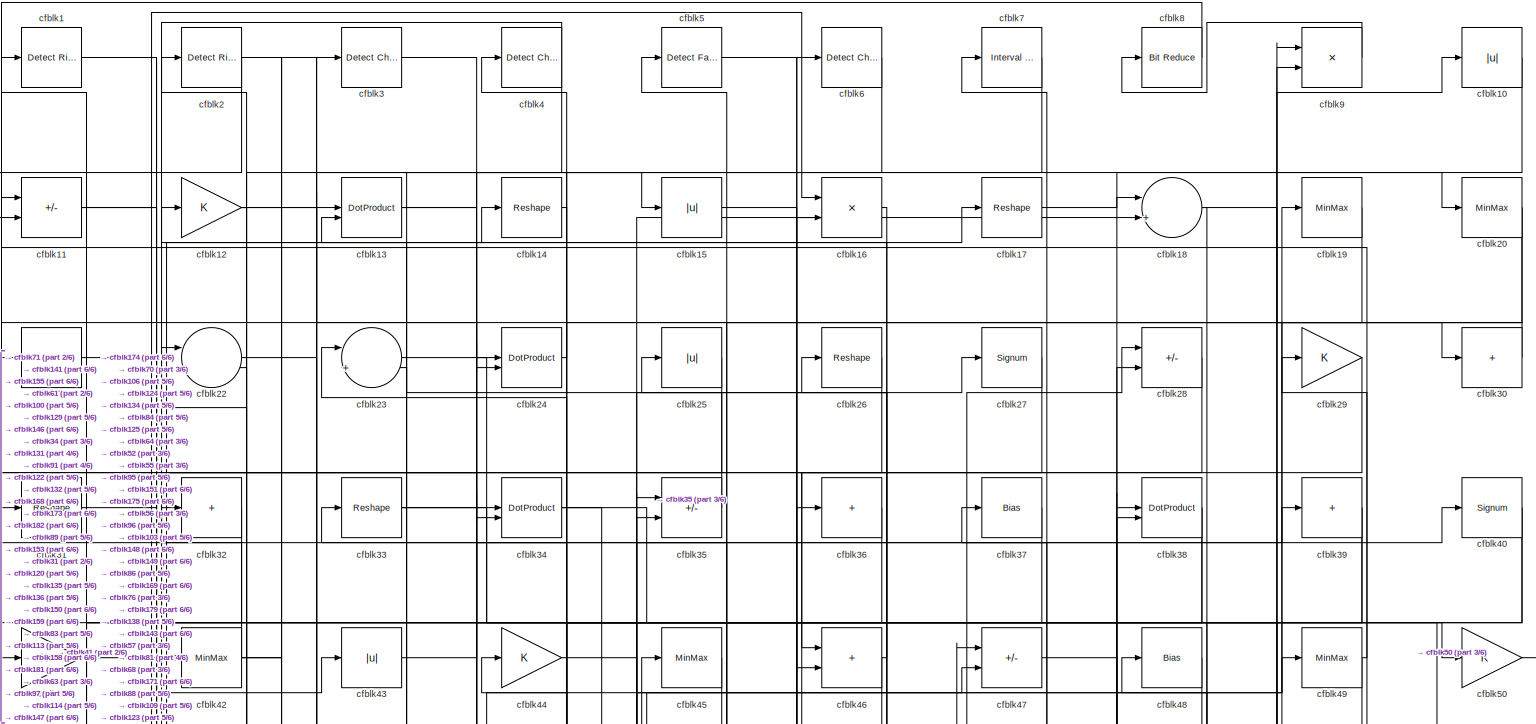
[diagram: root canvas - part 1/6, full width, top band]
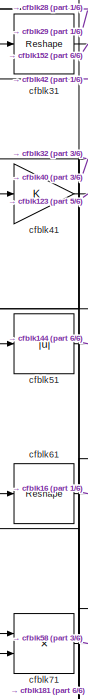
[diagram: root canvas - part 2/6, top left region]
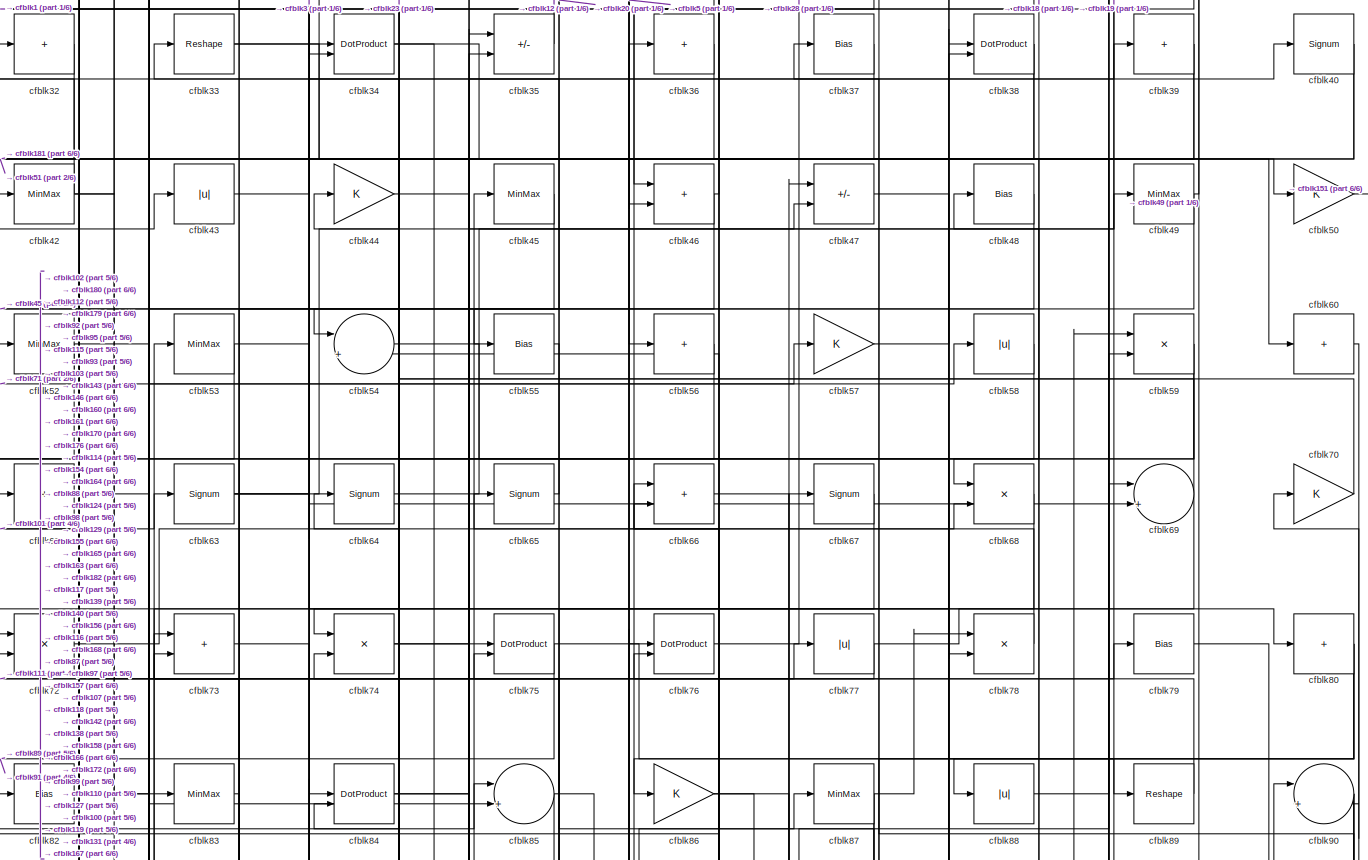
[diagram: root canvas - part 3/6, full width, top band]
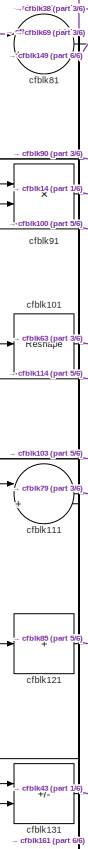
[diagram: root canvas - part 4/6, middle left region]
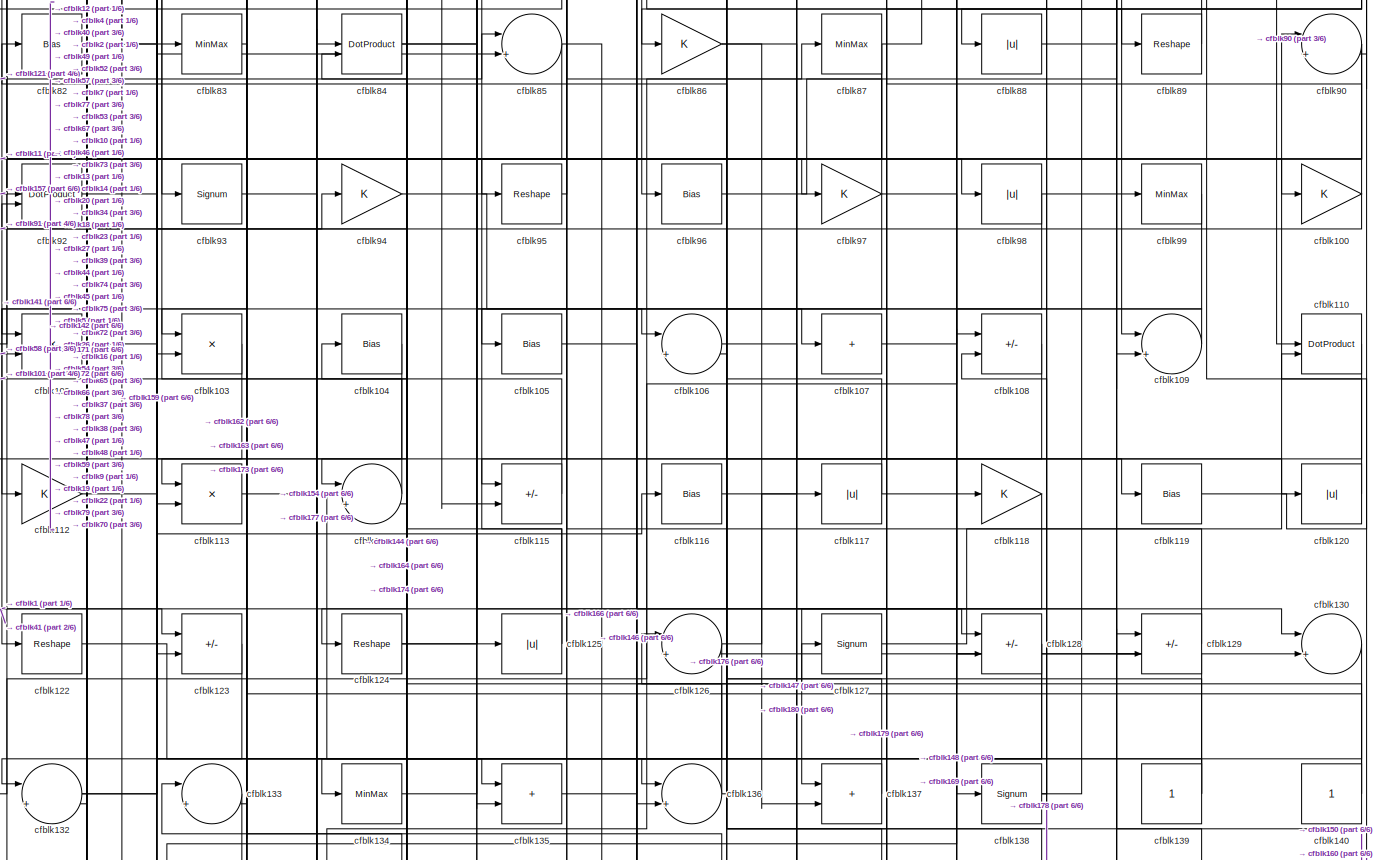
[diagram: root canvas - part 5/6, full width, middle band]
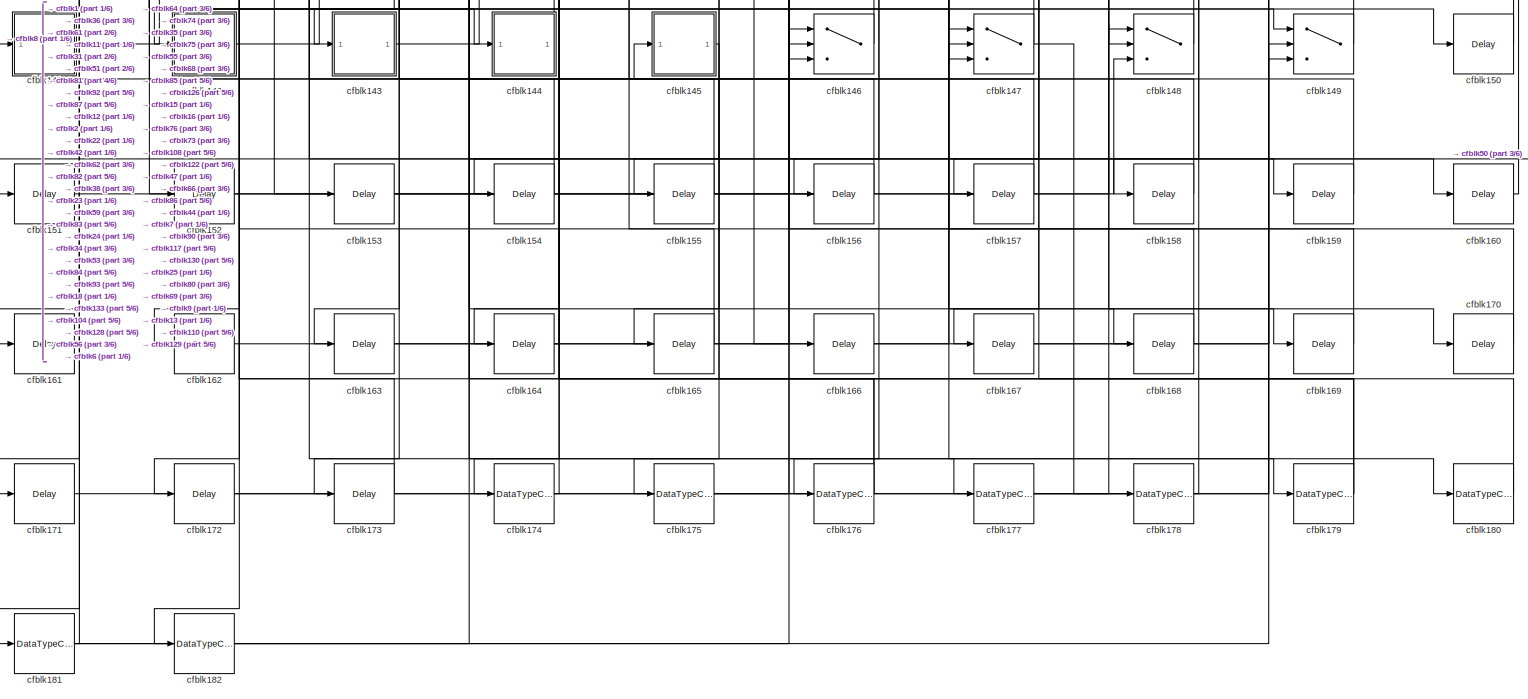
[diagram: root canvas - part 6/6, full width, bottom band]
MODEL slx_d55942059421
KIND model
CONFIG AbsTol = auto
CONFIG EnableMultiTasking = off
CONFIG FixedStep = auto
CONFIG MaxStep = auto
CONFIG MinStep = auto
CONFIG RelTol = 1e-3
CONFIG SampleTimeConstraint = Unconstrained
CONFIG SolverName = VariableStepAuto
CONFIG StartTime = 0.0
CONFIG StopTime = 10.0
BLOCK [Reference] cfblk1  REF=hdlsllib/Logic and Bit
Operations/Detect Rise
Positive
  SourceBlock = hdlsllib/Logic and Bit\nOperations/Detect Rise\nPositive
  SourceType = Detect Rise Positive
BLOCK [Abs] cfblk10
  SaturateOnIntegerOverflow = off
BLOCK [Gain] cfblk100
BLOCK [Reshape] cfblk101
BLOCK [Product] cfblk102
  Inputs = */
  RndMeth = Zero
  SaturateOnIntegerOverflow = on
BLOCK [Product] cfblk103
  Inputs = */
  RndMeth = Zero
  SaturateOnIntegerOverflow = on
BLOCK [Bias] cfblk104
  Bias = 0.0
  SaturateOnIntegerOverflow = off
BLOCK [Bias] cfblk105
  Bias = 0.0
  SaturateOnIntegerOverflow = off
BLOCK [Sum] cfblk106
  Inputs = |++
BLOCK [Sum] cfblk107
  IconShape = rectangular
  Inputs = +
BLOCK [Sum] cfblk108
  IconShape = rectangular
  Inputs = +-
BLOCK [Sum] cfblk109
  Inputs = |++
BLOCK [Sum] cfblk11
  IconShape = rectangular
  Inputs = +-
BLOCK [DotProduct] cfblk110
  OutDataTypeStr = Inherit: Inherit via internal rule
BLOCK [Sum] cfblk111
  Inputs = |++
BLOCK [Gain] cfblk112
BLOCK [Product] cfblk113
  Inputs = */
  RndMeth = Zero
  SaturateOnIntegerOverflow = on
BLOCK [Sum] cfblk114
  Inputs = |++
BLOCK [Sum] cfblk115
  IconShape = rectangular
  Inputs = +-
BLOCK [Bias] cfblk116
  Bias = 0.0
  SaturateOnIntegerOverflow = off
BLOCK [Abs] cfblk117
  SaturateOnIntegerOverflow = off
BLOCK [Gain] cfblk118
BLOCK [Bias] cfblk119
  Bias = 0.0
  SaturateOnIntegerOverflow = off
BLOCK [Gain] cfblk12
BLOCK [Abs] cfblk120
  SaturateOnIntegerOverflow = off
BLOCK [Sum] cfblk121
  IconShape = rectangular
  Inputs = +
BLOCK [Reshape] cfblk122
BLOCK [Sum] cfblk123
  IconShape = rectangular
  Inputs = +-
BLOCK [Reshape] cfblk124
BLOCK [Abs] cfblk125
  SaturateOnIntegerOverflow = off
BLOCK [Sum] cfblk126
  Inputs = |++
BLOCK [Signum] cfblk127
BLOCK [Sum] cfblk128
  IconShape = rectangular
  Inputs = +-
BLOCK [Sum] cfblk129
  IconShape = rectangular
  Inputs = +-
BLOCK [DotProduct] cfblk13
  OutDataTypeStr = Inherit: Inherit via internal rule
BLOCK [Sum] cfblk130
  Inputs = |++
BLOCK [Sum] cfblk131
  IconShape = rectangular
  Inputs = +-
BLOCK [Sum] cfblk132
  Inputs = |++
BLOCK [Sum] cfblk133
  Inputs = |++
BLOCK [MinMax] cfblk134
BLOCK [Sum] cfblk135
  IconShape = rectangular
BLOCK [Sum] cfblk136
  Inputs = |++
BLOCK [Sum] cfblk137
  IconShape = rectangular
BLOCK [Signum] cfblk138
BLOCK [Constant] cfblk139
  SampleTime = -1
BLOCK [Reshape] cfblk14
BLOCK [Constant] cfblk140
  SampleTime = -1
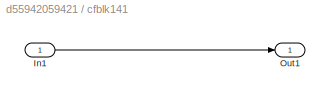
BLOCK [SubSystem] cfblk141
  LibrarySourceBlock = hdlsllib/Ports &\nSubsystems/Subsystem
BLOCK [Inport] cfblk141/In1
BLOCK [Outport] cfblk141/Out1
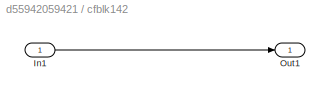
BLOCK [SubSystem] cfblk142
  LibrarySourceBlock = hdlsllib/Ports &\nSubsystems/Subsystem
BLOCK [Inport] cfblk142/In1
BLOCK [Outport] cfblk142/Out1
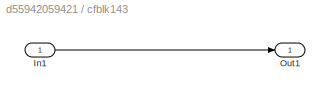
BLOCK [SubSystem] cfblk143
  LibrarySourceBlock = hdlsllib/Ports &\nSubsystems/Subsystem
BLOCK [Inport] cfblk143/In1
BLOCK [Outport] cfblk143/Out1
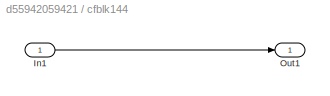
BLOCK [SubSystem] cfblk144
  LibrarySourceBlock = hdlsllib/Ports &\nSubsystems/Subsystem
BLOCK [Inport] cfblk144/In1
BLOCK [Outport] cfblk144/Out1
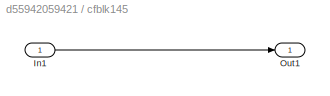
BLOCK [SubSystem] cfblk145
  LibrarySourceBlock = hdlsllib/Ports &\nSubsystems/Subsystem
BLOCK [Inport] cfblk145/In1
BLOCK [Outport] cfblk145/Out1
BLOCK [Switch] cfblk146
  InputSameDT = off
  SaturateOnIntegerOverflow = off
BLOCK [Switch] cfblk147
  InputSameDT = off
  SaturateOnIntegerOverflow = off
BLOCK [Switch] cfblk148
  InputSameDT = off
  SaturateOnIntegerOverflow = off
BLOCK [Switch] cfblk149
  InputSameDT = off
  SaturateOnIntegerOverflow = off
BLOCK [Abs] cfblk15
  SaturateOnIntegerOverflow = off
BLOCK [Delay] cfblk150
  InputPortMap = u0
  SampleTime = 1
BLOCK [Delay] cfblk151
  InputPortMap = u0
  SampleTime = 1
BLOCK [Delay] cfblk152
  InputPortMap = u0
  SampleTime = 1
BLOCK [Delay] cfblk153
  InputPortMap = u0
  SampleTime = 1
BLOCK [Delay] cfblk154
  InputPortMap = u0
  SampleTime = 1
BLOCK [Delay] cfblk155
  InputPortMap = u0
  SampleTime = 1
BLOCK [Delay] cfblk156
  InputPortMap = u0
  SampleTime = 1
BLOCK [Delay] cfblk157
  InputPortMap = u0
  SampleTime = 1
BLOCK [Delay] cfblk158
  InputPortMap = u0
  SampleTime = 1
BLOCK [Delay] cfblk159
  InputPortMap = u0
  SampleTime = 1
BLOCK [Product] cfblk16
  Inputs = */
  RndMeth = Zero
  SaturateOnIntegerOverflow = on
BLOCK [Delay] cfblk160
  InputPortMap = u0
  SampleTime = 1
BLOCK [Delay] cfblk161
  InputPortMap = u0
  SampleTime = 1
BLOCK [Delay] cfblk162
  InputPortMap = u0
  SampleTime = 1
BLOCK [Delay] cfblk163
  InputPortMap = u0
  SampleTime = 1
BLOCK [Delay] cfblk164
  InputPortMap = u0
  SampleTime = 1
BLOCK [Delay] cfblk165
  InputPortMap = u0
  SampleTime = 1
BLOCK [Delay] cfblk166
  InputPortMap = u0
  SampleTime = 1
BLOCK [Delay] cfblk167
  InputPortMap = u0
  SampleTime = 1
BLOCK [Delay] cfblk168
  InputPortMap = u0
  SampleTime = 1
BLOCK [Delay] cfblk169
  InputPortMap = u0
  SampleTime = 1
BLOCK [Reshape] cfblk17
BLOCK [Delay] cfblk170
  InputPortMap = u0
  SampleTime = 1
BLOCK [Delay] cfblk171
  InputPortMap = u0
  SampleTime = 1
BLOCK [Delay] cfblk172
  InputPortMap = u0
  SampleTime = 1
BLOCK [Delay] cfblk173
  InputPortMap = u0
  SampleTime = 1
BLOCK [DataTypeConversion] cfblk174
  OutDataTypeStr = uint8
  RndMeth = Floor
  SaturateOnIntegerOverflow = off
BLOCK [DataTypeConversion] cfblk175
  OutDataTypeStr = uint8
  RndMeth = Floor
  SaturateOnIntegerOverflow = off
BLOCK [DataTypeConversion] cfblk176
  RndMeth = Floor
  SaturateOnIntegerOverflow = off
BLOCK [DataTypeConversion] cfblk177
  OutDataTypeStr = uint8
  RndMeth = Floor
  SaturateOnIntegerOverflow = off
BLOCK [DataTypeConversion] cfblk178
  OutDataTypeStr = uint8
  RndMeth = Floor
  SaturateOnIntegerOverflow = off
BLOCK [DataTypeConversion] cfblk179
  RndMeth = Floor
  SaturateOnIntegerOverflow = off
BLOCK [Sum] cfblk18
  Inputs = |++
BLOCK [DataTypeConversion] cfblk180
  OutDataTypeStr = uint8
  RndMeth = Floor
  SaturateOnIntegerOverflow = off
BLOCK [DataTypeConversion] cfblk181
  RndMeth = Floor
  SaturateOnIntegerOverflow = off
BLOCK [DataTypeConversion] cfblk182
  OutDataTypeStr = uint8
  RndMeth = Floor
  SaturateOnIntegerOverflow = off
BLOCK [MinMax] cfblk19
BLOCK [Reference] cfblk2  REF=hdlsllib/Logic and Bit
Operations/Detect Rise
Nonnegative
  SourceBlock = hdlsllib/Logic and Bit\nOperations/Detect Rise\nNonnegative
  SourceType = Detect Rise Nonnegative
BLOCK [MinMax] cfblk20
BLOCK [Sum] cfblk21
  IconShape = rectangular
  Inputs = +
BLOCK [Sum] cfblk22
  Inputs = |++
BLOCK [Sum] cfblk23
  Inputs = |++
BLOCK [DotProduct] cfblk24
  OutDataTypeStr = Inherit: Inherit via internal rule
BLOCK [Abs] cfblk25
  SaturateOnIntegerOverflow = off
BLOCK [Reshape] cfblk26
BLOCK [Signum] cfblk27
BLOCK [Sum] cfblk28
  IconShape = rectangular
  Inputs = +-
BLOCK [Gain] cfblk29
BLOCK [Reference] cfblk3  REF=simulink/Logic and Bit
Operations/Detect
Change
  LibrarySourceBlock = hdlsllib/Logic and Bit\nOperations/Detect\nChange
  SourceBlock = simulink/Logic and Bit\nOperations/Detect\nChange
  SourceType = Detect Change
BLOCK [Sum] cfblk30
  IconShape = rectangular
  Inputs = +
BLOCK [Reshape] cfblk31
BLOCK [Sum] cfblk32
  IconShape = rectangular
  Inputs = +
BLOCK [Reshape] cfblk33
BLOCK [DotProduct] cfblk34
  OutDataTypeStr = Inherit: Inherit via internal rule
BLOCK [Sum] cfblk35
  IconShape = rectangular
  Inputs = +-
BLOCK [Sum] cfblk36
  IconShape = rectangular
  Inputs = +
BLOCK [Bias] cfblk37
  Bias = 0.0
  SaturateOnIntegerOverflow = off
BLOCK [DotProduct] cfblk38
  OutDataTypeStr = Inherit: Inherit via internal rule
BLOCK [Sum] cfblk39
  IconShape = rectangular
  Inputs = +
BLOCK [Reference] cfblk4  REF=simulink/Logic and Bit
Operations/Detect
Change
  LibrarySourceBlock = hdlsllib/Logic and Bit\nOperations/Detect\nChange
  SourceBlock = simulink/Logic and Bit\nOperations/Detect\nChange
  SourceType = Detect Change
BLOCK [Signum] cfblk40
BLOCK [Gain] cfblk41
BLOCK [MinMax] cfblk42
BLOCK [Abs] cfblk43
  SaturateOnIntegerOverflow = off
BLOCK [Gain] cfblk44
BLOCK [MinMax] cfblk45
BLOCK [Sum] cfblk46
  IconShape = rectangular
BLOCK [Sum] cfblk47
  IconShape = rectangular
  Inputs = +-
BLOCK [Bias] cfblk48
  Bias = 0.0
  SaturateOnIntegerOverflow = off
BLOCK [MinMax] cfblk49
BLOCK [Reference] cfblk5  REF=hdlsllib/Logic and Bit
Operations/Detect Fall
Nonpositive
  SourceBlock = hdlsllib/Logic and Bit\nOperations/Detect Fall\nNonpositive
  SourceType = Detect Fall Nonpositive
BLOCK [Gain] cfblk50
BLOCK [Abs] cfblk51
  SaturateOnIntegerOverflow = off
BLOCK [MinMax] cfblk52
BLOCK [MinMax] cfblk53
BLOCK [Sum] cfblk54
  Inputs = |++
BLOCK [Bias] cfblk55
  Bias = 0.0
  SaturateOnIntegerOverflow = off
BLOCK [Sum] cfblk56
  IconShape = rectangular
  Inputs = +
BLOCK [Gain] cfblk57
BLOCK [Abs] cfblk58
  SaturateOnIntegerOverflow = off
BLOCK [Product] cfblk59
  Inputs = */
  RndMeth = Zero
  SaturateOnIntegerOverflow = on
BLOCK [Reference] cfblk6  REF=simulink/Logic and Bit
Operations/Detect
Change
  LibrarySourceBlock = hdlsllib/Logic and Bit\nOperations/Detect\nChange
  SourceBlock = simulink/Logic and Bit\nOperations/Detect\nChange
  SourceType = Detect Change
BLOCK [Sum] cfblk60
  IconShape = rectangular
  Inputs = +
BLOCK [Reshape] cfblk61
BLOCK [Sum] cfblk62
  IconShape = rectangular
  Inputs = +
BLOCK [Signum] cfblk63
BLOCK [Signum] cfblk64
BLOCK [Signum] cfblk65
BLOCK [Sum] cfblk66
  IconShape = rectangular
BLOCK [Signum] cfblk67
BLOCK [Product] cfblk68
  Inputs = */
  RndMeth = Zero
  SaturateOnIntegerOverflow = on
BLOCK [Sum] cfblk69
  Inputs = |++
BLOCK [Reference] cfblk7  REF=hdlsllib/Logic and Bit
Operations/Interval Test
  SourceBlock = hdlsllib/Logic and Bit\nOperations/Interval Test
  SourceType = Interval Test
BLOCK [Gain] cfblk70
BLOCK [Product] cfblk71
  Inputs = */
  RndMeth = Zero
  SaturateOnIntegerOverflow = on
BLOCK [Product] cfblk72
  Inputs = */
  RndMeth = Zero
  SaturateOnIntegerOverflow = on
BLOCK [Sum] cfblk73
  IconShape = rectangular
BLOCK [Product] cfblk74
  Inputs = */
  RndMeth = Zero
  SaturateOnIntegerOverflow = on
BLOCK [DotProduct] cfblk75
  OutDataTypeStr = Inherit: Inherit via internal rule
BLOCK [DotProduct] cfblk76
  OutDataTypeStr = Inherit: Inherit via internal rule
BLOCK [Abs] cfblk77
  SaturateOnIntegerOverflow = off
BLOCK [Product] cfblk78
  Inputs = */
  RndMeth = Zero
  SaturateOnIntegerOverflow = on
BLOCK [Bias] cfblk79
  Bias = 0.0
  SaturateOnIntegerOverflow = off
BLOCK [Reference] cfblk8  REF=hdlsllib/Logic and Bit
Operations/Bit Reduce
  SourceBlock = hdlsllib/Logic and Bit\nOperations/Bit Reduce
  SourceType = Bit Reduce
BLOCK [Sum] cfblk80
  IconShape = rectangular
  Inputs = +
BLOCK [Sum] cfblk81
  Inputs = |++
BLOCK [Bias] cfblk82
  Bias = 0.0
  SaturateOnIntegerOverflow = off
BLOCK [MinMax] cfblk83
BLOCK [DotProduct] cfblk84
  OutDataTypeStr = Inherit: Inherit via internal rule
BLOCK [Sum] cfblk85
  Inputs = |++
BLOCK [Gain] cfblk86
BLOCK [MinMax] cfblk87
BLOCK [Abs] cfblk88
  SaturateOnIntegerOverflow = off
BLOCK [Reshape] cfblk89
BLOCK [Product] cfblk9
  Inputs = */
  RndMeth = Zero
  SaturateOnIntegerOverflow = on
BLOCK [Sum] cfblk90
  Inputs = |++
BLOCK [Product] cfblk91
  Inputs = */
  RndMeth = Zero
  SaturateOnIntegerOverflow = on
BLOCK [DotProduct] cfblk92
  OutDataTypeStr = Inherit: Inherit via internal rule
BLOCK [Signum] cfblk93
BLOCK [Gain] cfblk94
BLOCK [Reshape] cfblk95
BLOCK [Bias] cfblk96
  Bias = 0.0
  SaturateOnIntegerOverflow = off
BLOCK [Gain] cfblk97
BLOCK [Abs] cfblk98
  SaturateOnIntegerOverflow = off
BLOCK [MinMax] cfblk99
NET cfblk100:1 -> cfblk37:1, cfblk91:2
LINE cfblk101:1 -> cfblk63:1
LINE cfblk102:1 -> cfblk85:2
LINE cfblk103:1 -> cfblk121:1
LINE cfblk104:1 -> cfblk133:2
LINE cfblk105:1 -> cfblk128:1
LINE cfblk106:1 -> cfblk119:1
LINE cfblk107:1 -> cfblk38:1
LINE cfblk108:1 -> cfblk176:1
LINE cfblk109:1 -> cfblk105:1
LINE cfblk10:1 -> cfblk113:1
LINE cfblk110:1 -> cfblk115:1
LINE cfblk111:1 -> cfblk79:1
LINE cfblk112:1 -> cfblk57:1
LINE cfblk113:1 -> cfblk135:1
LINE cfblk114:1 -> cfblk101:1
LINE cfblk115:1 -> cfblk53:1
LINE cfblk116:1 -> cfblk67:1
NET cfblk117:1 -> cfblk169:1, cfblk65:1
LINE cfblk118:1 -> cfblk137:1
LINE cfblk119:1 -> cfblk70:1
NET cfblk11:1 -> cfblk100:1, cfblk146:2
LINE cfblk120:1 -> cfblk11:1
LINE cfblk121:1 -> cfblk85:1
LINE cfblk122:1 -> cfblk147:1
LINE cfblk123:1 -> cfblk132:1
NET cfblk124:1 -> cfblk18:2, cfblk39:1
NET cfblk125:1 -> cfblk45:1, cfblk92:2
NET cfblk126:1 -> cfblk117:1, cfblk146:3
LINE cfblk127:1 -> cfblk90:1
NET cfblk128:1 -> cfblk163:1, cfblk164:1
LINE cfblk129:1 -> cfblk75:2
NET cfblk12:1 -> cfblk136:2, cfblk150:1, cfblk182:1
LINE cfblk130:1 -> cfblk148:2
LINE cfblk131:1 -> cfblk43:1
NET cfblk132:1 -> cfblk116:1, cfblk94:1
LINE cfblk133:1 -> cfblk162:1
LINE cfblk134:1 -> cfblk27:1
LINE cfblk135:1 -> cfblk127:1
NET cfblk136:1 -> cfblk106:2, cfblk126:1
LINE cfblk137:1 -> cfblk82:1
NET cfblk138:1 -> cfblk48:1, cfblk59:1
NET cfblk139:1 -> cfblk126:2, cfblk134:1, cfblk54:2
NET cfblk13:1 -> cfblk15:1, cfblk97:1
NET cfblk140:1 -> cfblk66:2, cfblk73:2
LINE cfblk141/In1:1 -> cfblk141/Out1:1
LINE cfblk141:1 -> cfblk87:1
LINE cfblk142/In1:1 -> cfblk142/Out1:1
LINE cfblk142:1 -> cfblk38:2
LINE cfblk143/In1:1 -> cfblk143/Out1:1
LINE cfblk143:1 -> cfblk18:1
LINE cfblk144/In1:1 -> cfblk144/Out1:1
LINE cfblk144:1 -> cfblk133:1
LINE cfblk145/In1:1 -> cfblk145/Out1:1
LINE cfblk145:1 -> cfblk175:1
LINE cfblk146:1 -> cfblk73:1
NET cfblk147:1 -> cfblk178:1, cfblk44:1
LINE cfblk148:1 -> cfblk25:1
LINE cfblk149:1 -> cfblk13:2
LINE cfblk14:1 -> cfblk124:1
LINE cfblk150:1 -> cfblk129:1
LINE cfblk151:1 -> cfblk16:2
LINE cfblk152:1 -> cfblk148:1
LINE cfblk153:1 -> cfblk148:3
LINE cfblk154:1 -> cfblk84:1
LINE cfblk155:1 -> cfblk1:1
LINE cfblk156:1 -> cfblk75:1
LINE cfblk157:1 -> cfblk92:1
LINE cfblk158:1 -> cfblk23:2
LINE cfblk159:1 -> cfblk13:1
LINE cfblk15:1 -> cfblk147:3
LINE cfblk160:1 -> cfblk110:2
LINE cfblk161:1 -> cfblk81:2
LINE cfblk162:1 -> cfblk147:2
LINE cfblk163:1 -> cfblk76:1
LINE cfblk164:1 -> cfblk74:2
LINE cfblk165:1 -> cfblk35:1
LINE cfblk166:1 -> cfblk69:1
LINE cfblk167:1 -> cfblk149:3
LINE cfblk168:1 -> cfblk22:1
LINE cfblk169:1 -> cfblk47:1
LINE cfblk16:1 -> cfblk86:1
LINE cfblk170:1 -> cfblk146:1
LINE cfblk171:1 -> cfblk9:1
LINE cfblk172:1 -> cfblk59:2
LINE cfblk173:1 -> cfblk2:1
LINE cfblk174:1 -> cfblk104:1
LINE cfblk175:1 -> cfblk6:1
NET cfblk176:1 -> cfblk145:1, cfblk34:1
LINE cfblk177:1 -> cfblk108:1
LINE cfblk178:1 -> cfblk108:2
NET cfblk179:1 -> cfblk64:1, cfblk7:1, cfblk84:2
LINE cfblk17:1 -> cfblk20:1
LINE cfblk180:1 -> cfblk62:1
NET cfblk181:1 -> cfblk149:2, cfblk24:1, cfblk61:1
LINE cfblk182:1 -> cfblk36:1
NET cfblk18:1 -> cfblk30:1, cfblk68:1
LINE cfblk19:1 -> cfblk109:1
NET cfblk1:1 -> cfblk129:2, cfblk34:2
NET cfblk20:1 -> cfblk114:2, cfblk55:1
LINE cfblk21:1 -> cfblk46:2
LINE cfblk22:1 -> cfblk120:1
LINE cfblk23:1 -> cfblk125:1
LINE cfblk24:1 -> cfblk4:1
LINE cfblk25:1 -> cfblk42:1
LINE cfblk26:1 -> cfblk96:1
LINE cfblk27:1 -> cfblk46:1
LINE cfblk28:1 -> cfblk41:1
LINE cfblk29:1 -> cfblk71:1
NET cfblk2:1 -> cfblk11:2, cfblk135:2, cfblk24:2, cfblk83:1
LINE cfblk30:1 -> cfblk21:1
LINE cfblk31:1 -> cfblk152:1
LINE cfblk32:1 -> cfblk71:2
NET cfblk33:1 -> cfblk60:1, cfblk78:2
NET cfblk34:1 -> cfblk115:2, cfblk99:1
LINE cfblk35:1 -> cfblk12:1
LINE cfblk36:1 -> cfblk181:1
LINE cfblk37:1 -> cfblk74:1
NET cfblk38:1 -> cfblk111:2, cfblk54:1
NET cfblk39:1 -> cfblk114:1, cfblk88:1
LINE cfblk3:1 -> cfblk50:1
NET cfblk40:1 -> cfblk102:1, cfblk51:1
LINE cfblk41:1 -> cfblk123:1
NET cfblk42:1 -> cfblk153:1, cfblk31:1, cfblk3:1
LINE cfblk43:1 -> cfblk17:1
LINE cfblk44:1 -> cfblk106:1
LINE cfblk45:1 -> cfblk52:1
NET cfblk46:1 -> cfblk103:1, cfblk26:1
LINE cfblk47:1 -> cfblk138:1
LINE cfblk48:1 -> cfblk81:1
NET cfblk49:1 -> cfblk123:2, cfblk29:1
NET cfblk4:1 -> cfblk122:1, cfblk132:2
LINE cfblk50:1 -> cfblk151:1
LINE cfblk51:1 -> cfblk144:1
NET cfblk52:1 -> cfblk72:2, cfblk95:1
NET cfblk53:1 -> cfblk160:1, cfblk161:1
LINE cfblk54:1 -> cfblk118:1
LINE cfblk55:1 -> cfblk165:1
LINE cfblk56:1 -> cfblk154:1
LINE cfblk57:1 -> cfblk49:1
LINE cfblk58:1 -> cfblk102:2
NET cfblk59:1 -> cfblk103:2, cfblk143:1
LINE cfblk5:1 -> cfblk56:1
LINE cfblk60:1 -> cfblk90:2
LINE cfblk61:1 -> cfblk16:1
LINE cfblk62:1 -> cfblk179:1
NET cfblk63:1 -> cfblk28:2, cfblk40:1, cfblk69:2
LINE cfblk64:1 -> cfblk19:1
LINE cfblk65:1 -> cfblk33:1
LINE cfblk66:1 -> cfblk168:1
LINE cfblk67:1 -> cfblk93:1
LINE cfblk68:1 -> cfblk155:1
NET cfblk69:1 -> cfblk111:1, cfblk32:1
LINE cfblk6:1 -> cfblk174:1
LINE cfblk70:1 -> cfblk23:1
LINE cfblk71:1 -> cfblk58:1
LINE cfblk72:1 -> cfblk68:2
LINE cfblk73:1 -> cfblk170:1
NET cfblk74:1 -> cfblk35:2, cfblk98:1
NET cfblk75:1 -> cfblk89:1, cfblk91:1
LINE cfblk76:1 -> cfblk28:1
NET cfblk77:1 -> cfblk76:2, cfblk80:1
LINE cfblk78:1 -> cfblk66:1
LINE cfblk79:1 -> cfblk110:1
LINE cfblk7:1 -> cfblk113:2
NET cfblk80:1 -> cfblk156:1, cfblk157:1, cfblk158:1
LINE cfblk81:1 -> cfblk149:1
LINE cfblk82:1 -> cfblk159:1
LINE cfblk83:1 -> cfblk173:1
NET cfblk84:1 -> cfblk130:1, cfblk47:2
NET cfblk85:1 -> cfblk142:1, cfblk166:1
NET cfblk86:1 -> cfblk137:2, cfblk180:1
NET cfblk87:1 -> cfblk171:1, cfblk172:1, cfblk78:1
LINE cfblk88:1 -> cfblk10:1
LINE cfblk89:1 -> cfblk22:2
LINE cfblk8:1 -> cfblk141:1
NET cfblk90:1 -> cfblk131:1, cfblk131:2, cfblk167:1
LINE cfblk91:1 -> cfblk14:1
LINE cfblk92:1 -> cfblk77:1
LINE cfblk93:1 -> cfblk177:1
LINE cfblk94:1 -> cfblk107:1
LINE cfblk95:1 -> cfblk5:1
LINE cfblk96:1 -> cfblk9:2
NET cfblk97:1 -> cfblk130:2, cfblk136:1, cfblk72:1
NET cfblk98:1 -> cfblk109:2, cfblk112:1
LINE cfblk99:1 -> cfblk128:2
LINE cfblk9:1 -> cfblk8:1
note: NET lines group one-source signal fan-out (src -> all destinations, sorted); 1:1 wires keep LINE
